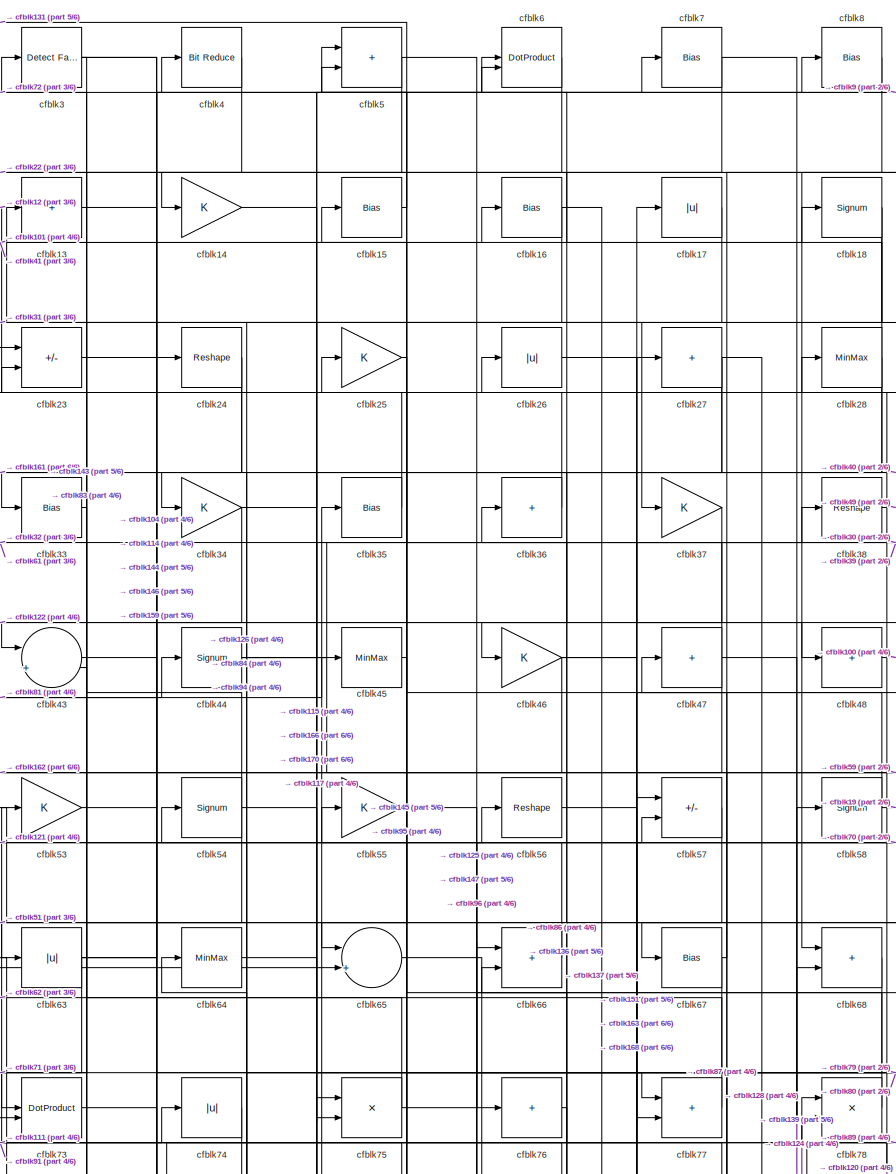
[diagram: root canvas - part 1/6, top center region]
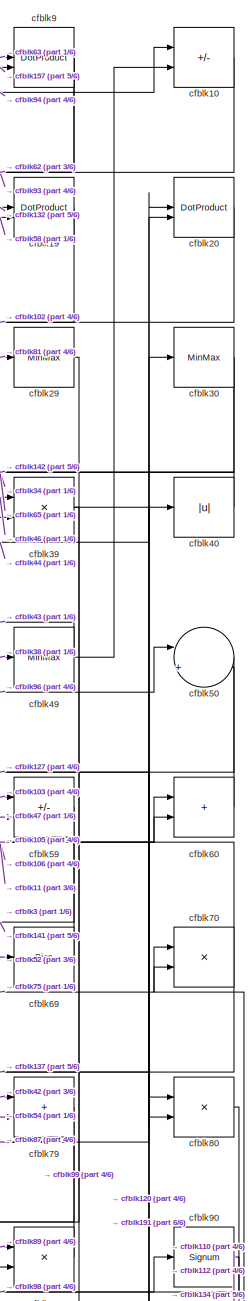
[diagram: root canvas - part 2/6, top right region]
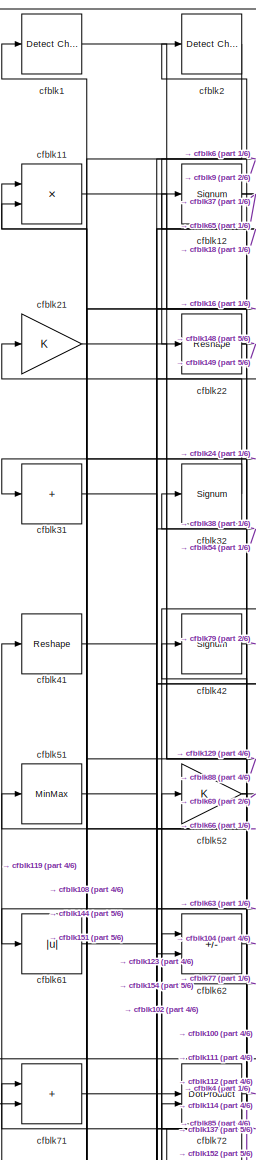
[diagram: root canvas - part 3/6, top left region]
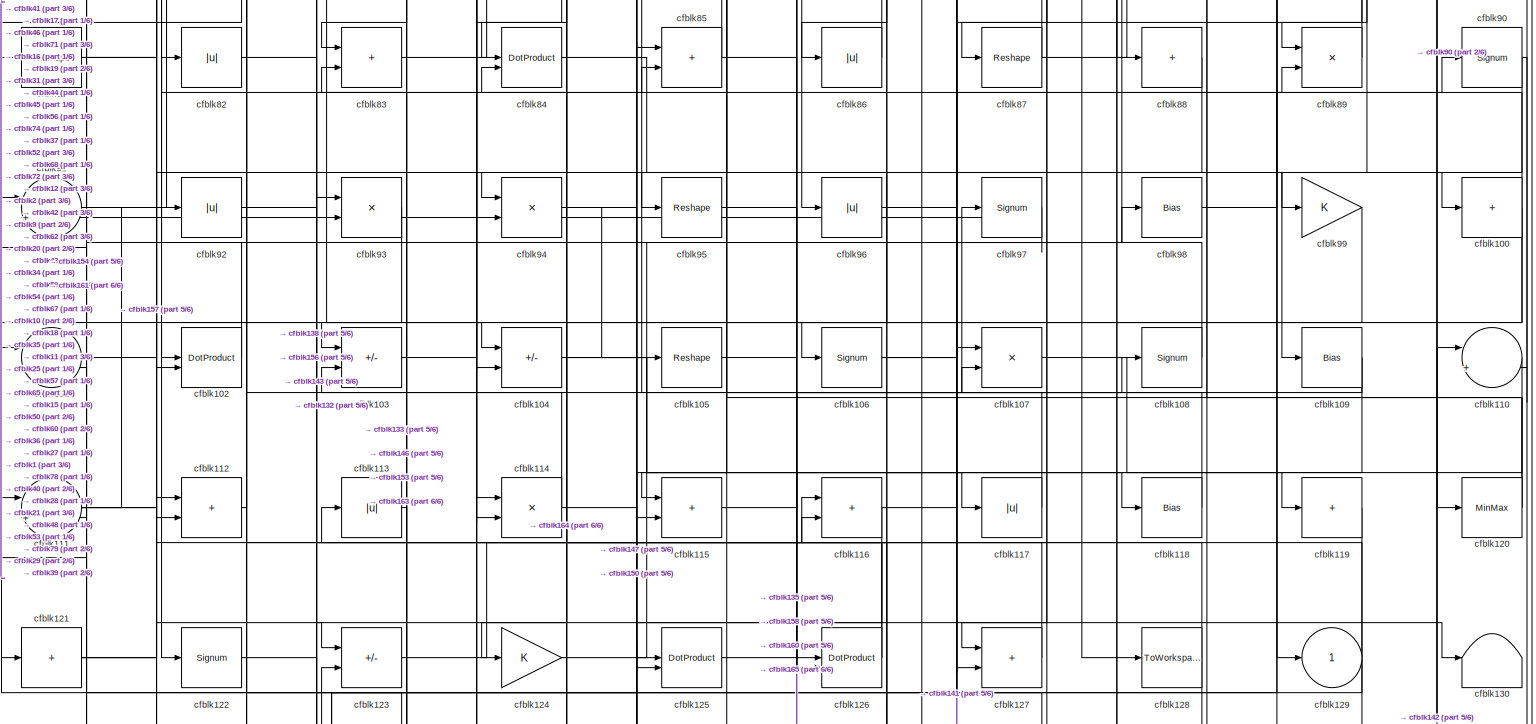
[diagram: root canvas - part 4/6, full width, middle band]
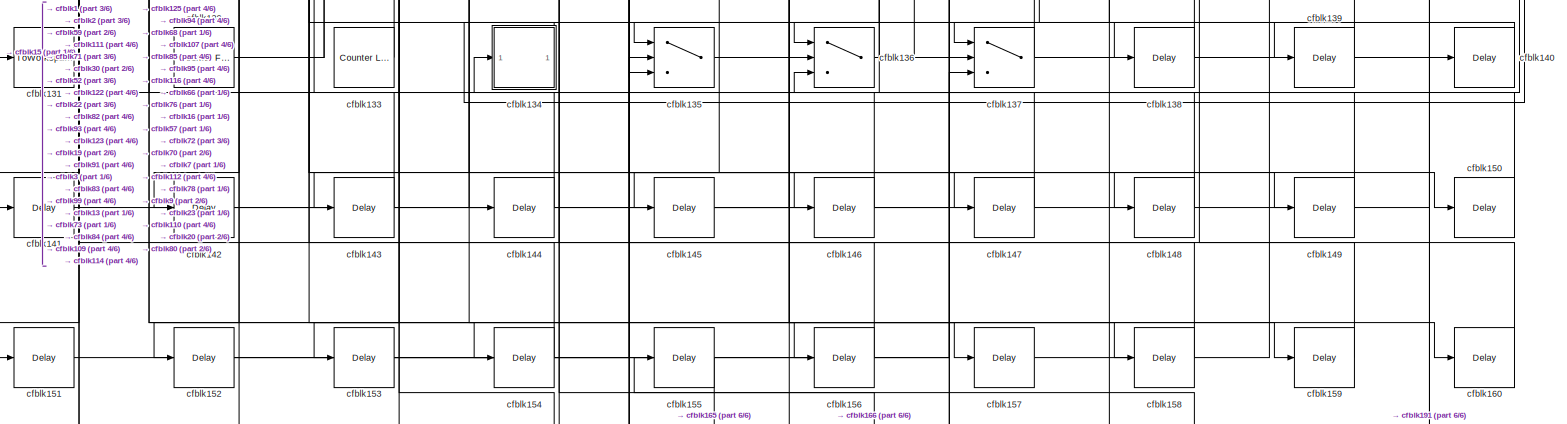
[diagram: root canvas - part 5/6, full width, bottom band]
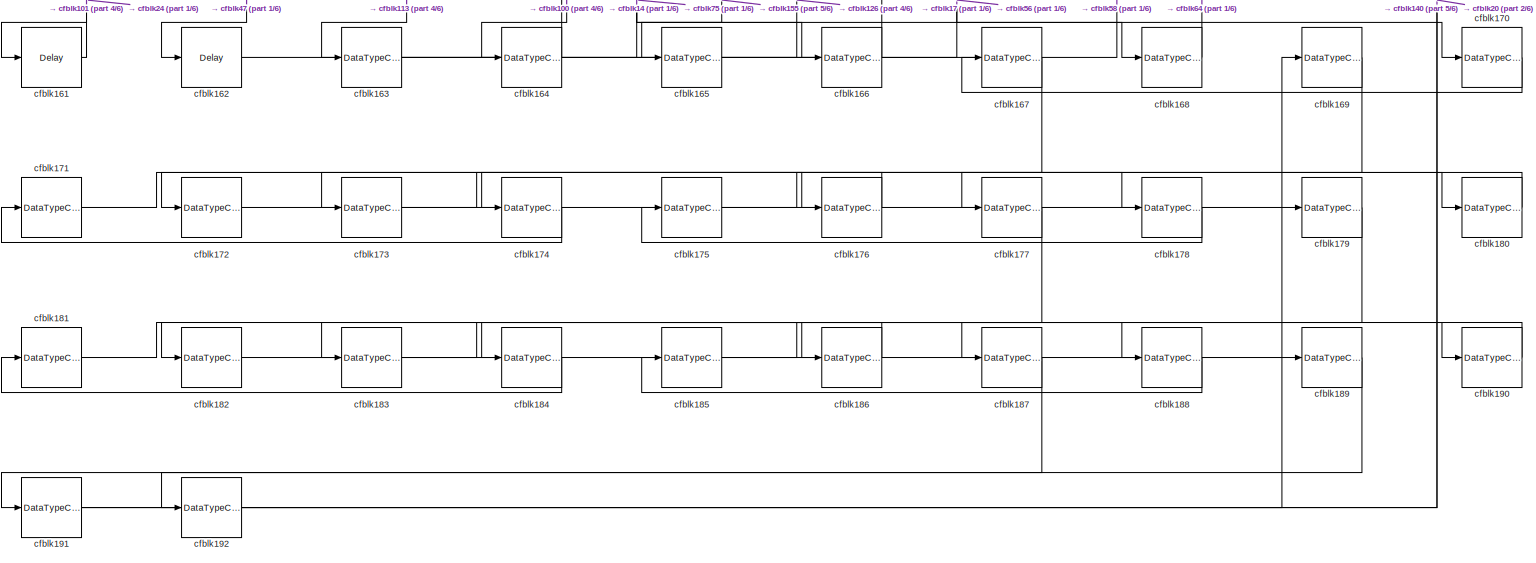
[diagram: root canvas - part 6/6, full width, bottom band]
MODEL slx_b6fbd761c72e
KIND model
CONFIG AbsTol = auto
CONFIG EnableMultiTasking = off
CONFIG FixedStep = auto
CONFIG MaxStep = auto
CONFIG MinStep = auto
CONFIG RelTol = 1e-3
CONFIG SampleTimeConstraint = Unconstrained
CONFIG SolverName = VariableStepAuto
CONFIG StartTime = 0.0
CONFIG StopTime = 10.0
BLOCK [Reference] cfblk1  REF=simulink/Logic and Bit
Operations/Detect
Change
  LibrarySourceBlock = hdlsllib/Logic and Bit\nOperations/Detect\nChange
  SourceBlock = simulink/Logic and Bit\nOperations/Detect\nChange
  SourceType = Detect Change
BLOCK [Sum] cfblk10
  IconShape = rectangular
  Inputs = +-
BLOCK [Sum] cfblk100
  IconShape = rectangular
  Inputs = +
BLOCK [Sum] cfblk101
  Inputs = |++
BLOCK [DotProduct] cfblk102
  OutDataTypeStr = Inherit: Inherit via internal rule
BLOCK [Sum] cfblk103
  IconShape = rectangular
  Inputs = +-
BLOCK [Sum] cfblk104
  IconShape = rectangular
  Inputs = +-
BLOCK [Reshape] cfblk105
BLOCK [Signum] cfblk106
BLOCK [Product] cfblk107
  Inputs = */
  RndMeth = Zero
  SaturateOnIntegerOverflow = on
BLOCK [Signum] cfblk108
BLOCK [Bias] cfblk109
  Bias = 0.0
  SaturateOnIntegerOverflow = off
BLOCK [Product] cfblk11
  Inputs = */
  RndMeth = Zero
  SaturateOnIntegerOverflow = on
BLOCK [Sum] cfblk110
  Inputs = |++
BLOCK [Sum] cfblk111
  Inputs = |++
BLOCK [Sum] cfblk112
  IconShape = rectangular
BLOCK [Abs] cfblk113
  SaturateOnIntegerOverflow = off
BLOCK [Product] cfblk114
  Inputs = */
  RndMeth = Zero
  SaturateOnIntegerOverflow = on
BLOCK [Sum] cfblk115
  IconShape = rectangular
BLOCK [Sum] cfblk116
  IconShape = rectangular
BLOCK [Abs] cfblk117
  SaturateOnIntegerOverflow = off
BLOCK [Bias] cfblk118
  Bias = 0.0
  SaturateOnIntegerOverflow = off
BLOCK [Sum] cfblk119
  IconShape = rectangular
  Inputs = +
BLOCK [Signum] cfblk12
BLOCK [MinMax] cfblk120
BLOCK [Sum] cfblk121
  IconShape = rectangular
  Inputs = +
BLOCK [Signum] cfblk122
BLOCK [Sum] cfblk123
  IconShape = rectangular
  Inputs = +-
BLOCK [Gain] cfblk124
BLOCK [DotProduct] cfblk125
  OutDataTypeStr = Inherit: Inherit via internal rule
BLOCK [DotProduct] cfblk126
  OutDataTypeStr = Inherit: Inherit via internal rule
BLOCK [Sum] cfblk127
  IconShape = rectangular
BLOCK [ToWorkspace] cfblk128
  MaxDataPoints = inf
  SampleTime = -1
  SaveFormat = Timeseries
  VariableName = simout
BLOCK [Outport] cfblk129
  VectorParamsAs1DForOutWhenUnconnected = off
BLOCK [Sum] cfblk13
  IconShape = rectangular
  Inputs = +
BLOCK [Terminator] cfblk130
BLOCK [ToWorkspace] cfblk131
  MaxDataPoints = inf
  SampleTime = -1
  SaveFormat = Timeseries
  VariableName = simout
BLOCK [Reference] cfblk132  REF=hdlsllib/Sources/Counter
Free-Running
  SourceBlock = hdlsllib/Sources/Counter\nFree-Running
  SourceType = Counter Free-Running
BLOCK [Reference] cfblk133  REF=hdlsllib/Sources/Counter
Limited
  SourceBlock = hdlsllib/Sources/Counter\nLimited
  SourceType = Counter Limited
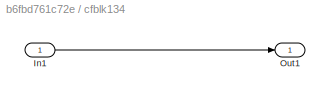
BLOCK [SubSystem] cfblk134
  LibrarySourceBlock = hdlsllib/Ports &\nSubsystems/Subsystem
BLOCK [Inport] cfblk134/In1
BLOCK [Outport] cfblk134/Out1
BLOCK [Switch] cfblk135
  InputSameDT = off
  SaturateOnIntegerOverflow = off
BLOCK [Switch] cfblk136
  InputSameDT = off
  SaturateOnIntegerOverflow = off
BLOCK [Switch] cfblk137
  InputSameDT = off
  SaturateOnIntegerOverflow = off
BLOCK [Delay] cfblk138
  InputPortMap = u0
  SampleTime = 1
BLOCK [Delay] cfblk139
  InputPortMap = u0
  SampleTime = 1
BLOCK [Gain] cfblk14
BLOCK [Delay] cfblk140
  InputPortMap = u0
  SampleTime = 1
BLOCK [Delay] cfblk141
  InputPortMap = u0
  SampleTime = 1
BLOCK [Delay] cfblk142
  InputPortMap = u0
  SampleTime = 1
BLOCK [Delay] cfblk143
  InputPortMap = u0
  SampleTime = 1
BLOCK [Delay] cfblk144
  InputPortMap = u0
  SampleTime = 1
BLOCK [Delay] cfblk145
  InputPortMap = u0
  SampleTime = 1
BLOCK [Delay] cfblk146
  InputPortMap = u0
  SampleTime = 1
BLOCK [Delay] cfblk147
  InputPortMap = u0
  SampleTime = 1
BLOCK [Delay] cfblk148
  InputPortMap = u0
  SampleTime = 1
BLOCK [Delay] cfblk149
  InputPortMap = u0
  SampleTime = 1
BLOCK [Bias] cfblk15
  Bias = 0.0
  SaturateOnIntegerOverflow = off
BLOCK [Delay] cfblk150
  InputPortMap = u0
  SampleTime = 1
BLOCK [Delay] cfblk151
  InputPortMap = u0
  SampleTime = 1
BLOCK [Delay] cfblk152
  InputPortMap = u0
  SampleTime = 1
BLOCK [Delay] cfblk153
  InputPortMap = u0
  SampleTime = 1
BLOCK [Delay] cfblk154
  InputPortMap = u0
  SampleTime = 1
BLOCK [Delay] cfblk155
  InputPortMap = u0
  SampleTime = 1
BLOCK [Delay] cfblk156
  InputPortMap = u0
  SampleTime = 1
BLOCK [Delay] cfblk157
  InputPortMap = u0
  SampleTime = 1
BLOCK [Delay] cfblk158
  InputPortMap = u0
  SampleTime = 1
BLOCK [Delay] cfblk159
  InputPortMap = u0
  SampleTime = 1
BLOCK [Bias] cfblk16
  Bias = 0.0
  SaturateOnIntegerOverflow = off
BLOCK [Delay] cfblk160
  InputPortMap = u0
  SampleTime = 1
BLOCK [Delay] cfblk161
  InputPortMap = u0
  SampleTime = 1
BLOCK [Delay] cfblk162
  InputPortMap = u0
  SampleTime = 1
BLOCK [DataTypeConversion] cfblk163
  RndMeth = Floor
  SaturateOnIntegerOverflow = off
BLOCK [DataTypeConversion] cfblk164
  OutDataTypeStr = uint8
  RndMeth = Floor
  SaturateOnIntegerOverflow = off
BLOCK [DataTypeConversion] cfblk165
  OutDataTypeStr = uint8
  RndMeth = Floor
  SaturateOnIntegerOverflow = off
BLOCK [DataTypeConversion] cfblk166
  OutDataTypeStr = uint8
  RndMeth = Floor
  SaturateOnIntegerOverflow = off
BLOCK [DataTypeConversion] cfblk167
  RndMeth = Floor
  SaturateOnIntegerOverflow = off
BLOCK [DataTypeConversion] cfblk168
  OutDataTypeStr = uint8
  RndMeth = Floor
  SaturateOnIntegerOverflow = off
BLOCK [DataTypeConversion] cfblk169
  RndMeth = Floor
  SaturateOnIntegerOverflow = off
BLOCK [Abs] cfblk17
  SaturateOnIntegerOverflow = off
BLOCK [DataTypeConversion] cfblk170
  OutDataTypeStr = uint8
  RndMeth = Floor
  SaturateOnIntegerOverflow = off
BLOCK [DataTypeConversion] cfblk171
  RndMeth = Floor
  SaturateOnIntegerOverflow = off
BLOCK [DataTypeConversion] cfblk172
  OutDataTypeStr = uint8
  RndMeth = Floor
  SaturateOnIntegerOverflow = off
BLOCK [DataTypeConversion] cfblk173
  RndMeth = Floor
  SaturateOnIntegerOverflow = off
BLOCK [DataTypeConversion] cfblk174
  OutDataTypeStr = uint8
  RndMeth = Floor
  SaturateOnIntegerOverflow = off
BLOCK [DataTypeConversion] cfblk175
  RndMeth = Floor
  SaturateOnIntegerOverflow = off
BLOCK [DataTypeConversion] cfblk176
  OutDataTypeStr = uint8
  RndMeth = Floor
  SaturateOnIntegerOverflow = off
BLOCK [DataTypeConversion] cfblk177
  RndMeth = Floor
  SaturateOnIntegerOverflow = off
BLOCK [DataTypeConversion] cfblk178
  OutDataTypeStr = uint8
  RndMeth = Floor
  SaturateOnIntegerOverflow = off
BLOCK [DataTypeConversion] cfblk179
  RndMeth = Floor
  SaturateOnIntegerOverflow = off
BLOCK [Signum] cfblk18
BLOCK [DataTypeConversion] cfblk180
  OutDataTypeStr = uint8
  RndMeth = Floor
  SaturateOnIntegerOverflow = off
BLOCK [DataTypeConversion] cfblk181
  RndMeth = Floor
  SaturateOnIntegerOverflow = off
BLOCK [DataTypeConversion] cfblk182
  OutDataTypeStr = uint8
  RndMeth = Floor
  SaturateOnIntegerOverflow = off
BLOCK [DataTypeConversion] cfblk183
  RndMeth = Floor
  SaturateOnIntegerOverflow = off
BLOCK [DataTypeConversion] cfblk184
  OutDataTypeStr = uint8
  RndMeth = Floor
  SaturateOnIntegerOverflow = off
BLOCK [DataTypeConversion] cfblk185
  RndMeth = Floor
  SaturateOnIntegerOverflow = off
BLOCK [DataTypeConversion] cfblk186
  OutDataTypeStr = uint8
  RndMeth = Floor
  SaturateOnIntegerOverflow = off
BLOCK [DataTypeConversion] cfblk187
  RndMeth = Floor
  SaturateOnIntegerOverflow = off
BLOCK [DataTypeConversion] cfblk188
  OutDataTypeStr = uint8
  RndMeth = Floor
  SaturateOnIntegerOverflow = off
BLOCK [DataTypeConversion] cfblk189
  RndMeth = Floor
  SaturateOnIntegerOverflow = off
BLOCK [DotProduct] cfblk19
  OutDataTypeStr = Inherit: Inherit via internal rule
BLOCK [DataTypeConversion] cfblk190
  OutDataTypeStr = uint8
  RndMeth = Floor
  SaturateOnIntegerOverflow = off
BLOCK [DataTypeConversion] cfblk191
  RndMeth = Floor
  SaturateOnIntegerOverflow = off
BLOCK [DataTypeConversion] cfblk192
  OutDataTypeStr = uint8
  RndMeth = Floor
  SaturateOnIntegerOverflow = off
BLOCK [Reference] cfblk2  REF=simulink/Logic and Bit
Operations/Detect
Change
  LibrarySourceBlock = hdlsllib/Logic and Bit\nOperations/Detect\nChange
  SourceBlock = simulink/Logic and Bit\nOperations/Detect\nChange
  SourceType = Detect Change
BLOCK [DotProduct] cfblk20
  OutDataTypeStr = Inherit: Inherit via internal rule
BLOCK [Gain] cfblk21
BLOCK [Reshape] cfblk22
BLOCK [Sum] cfblk23
  IconShape = rectangular
  Inputs = +-
BLOCK [Reshape] cfblk24
BLOCK [Gain] cfblk25
BLOCK [Abs] cfblk26
  SaturateOnIntegerOverflow = off
BLOCK [Sum] cfblk27
  IconShape = rectangular
  Inputs = +
BLOCK [MinMax] cfblk28
BLOCK [MinMax] cfblk29
BLOCK [Reference] cfblk3  REF=hdlsllib/Logic and Bit
Operations/Detect Fall
Negative
  SourceBlock = hdlsllib/Logic and Bit\nOperations/Detect Fall\nNegative
  SourceType = Detect Fall Negative
BLOCK [MinMax] cfblk30
BLOCK [Sum] cfblk31
  IconShape = rectangular
  Inputs = +
BLOCK [Signum] cfblk32
BLOCK [Bias] cfblk33
  Bias = 0.0
  SaturateOnIntegerOverflow = off
BLOCK [Gain] cfblk34
BLOCK [Bias] cfblk35
  Bias = 0.0
  SaturateOnIntegerOverflow = off
BLOCK [Sum] cfblk36
  IconShape = rectangular
  Inputs = +
BLOCK [Gain] cfblk37
BLOCK [Reshape] cfblk38
BLOCK [Product] cfblk39
  Inputs = */
  RndMeth = Zero
  SaturateOnIntegerOverflow = on
BLOCK [Reference] cfblk4  REF=hdlsllib/Logic and Bit
Operations/Bit Reduce
  SourceBlock = hdlsllib/Logic and Bit\nOperations/Bit Reduce
  SourceType = Bit Reduce
BLOCK [Abs] cfblk40
  SaturateOnIntegerOverflow = off
BLOCK [Reshape] cfblk41
BLOCK [Signum] cfblk42
BLOCK [Sum] cfblk43
  Inputs = |++
BLOCK [Signum] cfblk44
BLOCK [MinMax] cfblk45
BLOCK [Gain] cfblk46
BLOCK [Sum] cfblk47
  IconShape = rectangular
  Inputs = +
BLOCK [Sum] cfblk48
  IconShape = rectangular
  Inputs = +
BLOCK [MinMax] cfblk49
BLOCK [Sum] cfblk5
  IconShape = rectangular
BLOCK [Sum] cfblk50
  Inputs = |++
BLOCK [MinMax] cfblk51
BLOCK [Gain] cfblk52
BLOCK [Gain] cfblk53
BLOCK [Signum] cfblk54
BLOCK [Gain] cfblk55
BLOCK [Reshape] cfblk56
BLOCK [Sum] cfblk57
  IconShape = rectangular
  Inputs = +-
BLOCK [Signum] cfblk58
BLOCK [Sum] cfblk59
  IconShape = rectangular
  Inputs = +-
BLOCK [DotProduct] cfblk6
  OutDataTypeStr = Inherit: Inherit via internal rule
BLOCK [Sum] cfblk60
  IconShape = rectangular
BLOCK [Abs] cfblk61
  SaturateOnIntegerOverflow = off
BLOCK [Sum] cfblk62
  IconShape = rectangular
  Inputs = +-
BLOCK [Abs] cfblk63
  SaturateOnIntegerOverflow = off
BLOCK [MinMax] cfblk64
BLOCK [Sum] cfblk65
  Inputs = |++
BLOCK [Sum] cfblk66
  IconShape = rectangular
BLOCK [Bias] cfblk67
  Bias = 0.0
  SaturateOnIntegerOverflow = off
BLOCK [Sum] cfblk68
  IconShape = rectangular
BLOCK [Bias] cfblk69
  Bias = 0.0
  SaturateOnIntegerOverflow = off
BLOCK [Bias] cfblk7
  Bias = 0.0
  SaturateOnIntegerOverflow = off
BLOCK [Product] cfblk70
  Inputs = */
  RndMeth = Zero
  SaturateOnIntegerOverflow = on
BLOCK [Sum] cfblk71
  IconShape = rectangular
BLOCK [DotProduct] cfblk72
  OutDataTypeStr = Inherit: Inherit via internal rule
BLOCK [DotProduct] cfblk73
  OutDataTypeStr = Inherit: Inherit via internal rule
BLOCK [Abs] cfblk74
  SaturateOnIntegerOverflow = off
BLOCK [Product] cfblk75
  Inputs = */
  RndMeth = Zero
  SaturateOnIntegerOverflow = on
BLOCK [Sum] cfblk76
  IconShape = rectangular
  Inputs = +
BLOCK [Sum] cfblk77
  IconShape = rectangular
BLOCK [Product] cfblk78
  Inputs = */
  RndMeth = Zero
  SaturateOnIntegerOverflow = on
BLOCK [Sum] cfblk79
  IconShape = rectangular
BLOCK [Bias] cfblk8
  Bias = 0.0
  SaturateOnIntegerOverflow = off
BLOCK [Product] cfblk80
  Inputs = */
  RndMeth = Zero
  SaturateOnIntegerOverflow = on
BLOCK [Reshape] cfblk81
BLOCK [Abs] cfblk82
  SaturateOnIntegerOverflow = off
BLOCK [Sum] cfblk83
  IconShape = rectangular
BLOCK [DotProduct] cfblk84
  OutDataTypeStr = Inherit: Inherit via internal rule
BLOCK [Sum] cfblk85
  IconShape = rectangular
BLOCK [Abs] cfblk86
  SaturateOnIntegerOverflow = off
BLOCK [Reshape] cfblk87
BLOCK [Sum] cfblk88
  IconShape = rectangular
  Inputs = +
BLOCK [Product] cfblk89
  Inputs = */
  RndMeth = Zero
  SaturateOnIntegerOverflow = on
BLOCK [DotProduct] cfblk9
  OutDataTypeStr = Inherit: Inherit via internal rule
BLOCK [Signum] cfblk90
BLOCK [Sum] cfblk91
  Inputs = |++
BLOCK [Abs] cfblk92
  SaturateOnIntegerOverflow = off
BLOCK [Product] cfblk93
  Inputs = */
  RndMeth = Zero
  SaturateOnIntegerOverflow = on
BLOCK [Product] cfblk94
  Inputs = */
  RndMeth = Zero
  SaturateOnIntegerOverflow = on
BLOCK [Reshape] cfblk95
BLOCK [Abs] cfblk96
  SaturateOnIntegerOverflow = off
BLOCK [Signum] cfblk97
BLOCK [Bias] cfblk98
  Bias = 0.0
  SaturateOnIntegerOverflow = off
BLOCK [Gain] cfblk99
NET cfblk100:1 -> cfblk102:1, cfblk12:1, cfblk164:1
LINE cfblk101:1 -> cfblk16:1
LINE cfblk102:1 -> cfblk52:1
LINE cfblk103:1 -> cfblk59:1
NET cfblk104:1 -> cfblk117:1, cfblk118:1
LINE cfblk105:1 -> cfblk60:1
NET cfblk106:1 -> cfblk60:2, cfblk98:1
LINE cfblk107:1 -> cfblk119:1
LINE cfblk108:1 -> cfblk71:1
NET cfblk109:1 -> cfblk103:2, cfblk135:3
LINE cfblk10:1 -> cfblk87:1
LINE cfblk110:1 -> cfblk126:2
NET cfblk111:1 -> cfblk157:1, cfblk74:1, cfblk92:1
LINE cfblk112:1 -> cfblk42:1
LINE cfblk113:1 -> cfblk163:1
NET cfblk114:1 -> cfblk150:1, cfblk2:1
LINE cfblk115:1 -> cfblk108:1
NET cfblk116:1 -> cfblk125:2, cfblk89:2
LINE cfblk117:1 -> cfblk35:1
LINE cfblk118:1 -> cfblk97:1
LINE cfblk119:1 -> cfblk41:1
LINE cfblk11:1 -> cfblk114:1
NET cfblk120:1 -> cfblk25:1, cfblk28:1
NET cfblk121:1 -> cfblk44:1, cfblk56:1
LINE cfblk122:1 -> cfblk156:1
LINE cfblk123:1 -> cfblk116:1
LINE cfblk124:1 -> cfblk78:1
LINE cfblk125:1 -> cfblk57:2
NET cfblk126:1 -> cfblk43:2, cfblk54:1
LINE cfblk127:1 -> cfblk82:1
NET cfblk12:1 -> cfblk37:1, cfblk65:2
NET cfblk132:1 -> cfblk19:1, cfblk85:1
LINE cfblk133:1 -> cfblk91:1
LINE cfblk134/In1:1 -> cfblk134/Out1:1
LINE cfblk134:1 -> cfblk70:1
LINE cfblk135:1 -> cfblk107:2
LINE cfblk136:1 -> cfblk66:2
NET cfblk137:1 -> cfblk20:1, cfblk72:2
LINE cfblk138:1 -> cfblk112:1
LINE cfblk139:1 -> cfblk23:1
LINE cfblk13:1 -> cfblk144:1
LINE cfblk140:1 -> cfblk135:1
LINE cfblk141:1 -> cfblk107:1
LINE cfblk142:1 -> cfblk110:1
LINE cfblk143:1 -> cfblk123:2
LINE cfblk144:1 -> cfblk1:1
LINE cfblk145:1 -> cfblk136:2
LINE cfblk146:1 -> cfblk83:2
LINE cfblk147:1 -> cfblk66:1
LINE cfblk148:1 -> cfblk72:1
LINE cfblk149:1 -> cfblk136:3
LINE cfblk14:1 -> cfblk166:1
LINE cfblk150:1 -> cfblk116:2
LINE cfblk151:1 -> cfblk57:1
LINE cfblk152:1 -> cfblk137:3
LINE cfblk153:1 -> cfblk125:1
LINE cfblk154:1 -> cfblk111:1
LINE cfblk155:1 -> cfblk165:1
LINE cfblk156:1 -> cfblk135:2
LINE cfblk157:1 -> cfblk9:2
LINE cfblk158:1 -> cfblk84:2
LINE cfblk159:1 -> cfblk78:2
LINE cfblk15:1 -> cfblk131:1
LINE cfblk160:1 -> cfblk93:1
LINE cfblk161:1 -> cfblk101:2
LINE cfblk162:1 -> cfblk75:1
NET cfblk163:1 -> cfblk17:1, cfblk58:1
LINE cfblk164:1 -> cfblk113:1
LINE cfblk165:1 -> cfblk126:1
LINE cfblk166:1 -> cfblk155:1
LINE cfblk167:1 -> cfblk172:1
LINE cfblk168:1 -> cfblk64:1
LINE cfblk169:1 -> cfblk174:1
NET cfblk16:1 -> cfblk137:2, cfblk31:1
LINE cfblk170:1 -> cfblk167:1
LINE cfblk171:1 -> cfblk176:1
LINE cfblk172:1 -> cfblk169:1
LINE cfblk173:1 -> cfblk178:1
LINE cfblk174:1 -> cfblk171:1
LINE cfblk175:1 -> cfblk180:1
LINE cfblk176:1 -> cfblk173:1
LINE cfblk177:1 -> cfblk182:1
LINE cfblk178:1 -> cfblk175:1
LINE cfblk179:1 -> cfblk184:1
LINE cfblk17:1 -> cfblk81:1
LINE cfblk180:1 -> cfblk177:1
LINE cfblk181:1 -> cfblk186:1
LINE cfblk182:1 -> cfblk179:1
LINE cfblk183:1 -> cfblk188:1
LINE cfblk184:1 -> cfblk181:1
LINE cfblk185:1 -> cfblk190:1
LINE cfblk186:1 -> cfblk183:1
LINE cfblk187:1 -> cfblk192:1
LINE cfblk188:1 -> cfblk185:1
LINE cfblk189:1 -> cfblk191:1
NET cfblk18:1 -> cfblk115:2, cfblk124:1
LINE cfblk190:1 -> cfblk187:1
NET cfblk191:1 -> cfblk140:1, cfblk20:2
LINE cfblk192:1 -> cfblk189:1
LINE cfblk19:1 -> cfblk102:2
LINE cfblk1:1 -> cfblk88:1
LINE cfblk20:1 -> cfblk103:1
LINE cfblk21:1 -> cfblk129:1
NET cfblk22:1 -> cfblk148:1, cfblk149:1
LINE cfblk23:1 -> cfblk7:1
NET cfblk24:1 -> cfblk161:1, cfblk61:1
LINE cfblk25:1 -> cfblk95:1
LINE cfblk26:1 -> cfblk48:1
NET cfblk27:1 -> cfblk128:1, cfblk75:2, cfblk86:1
NET cfblk28:1 -> cfblk6:2, cfblk73:2, cfblk94:1
LINE cfblk29:1 -> cfblk99:1
LINE cfblk2:1 -> cfblk151:1
NET cfblk30:1 -> cfblk142:1, cfblk65:1
LINE cfblk31:1 -> cfblk123:1
LINE cfblk32:1 -> cfblk21:1
LINE cfblk33:1 -> cfblk73:1
NET cfblk34:1 -> cfblk114:2, cfblk6:1
LINE cfblk35:1 -> cfblk13:1
LINE cfblk36:1 -> cfblk26:1
LINE cfblk37:1 -> cfblk122:1
LINE cfblk38:1 -> cfblk49:1
NET cfblk39:1 -> cfblk120:1, cfblk89:1
NET cfblk3:1 -> cfblk143:1, cfblk146:1, cfblk77:2
LINE cfblk40:1 -> cfblk34:1
LINE cfblk41:1 -> cfblk18:1
LINE cfblk42:1 -> cfblk79:1
LINE cfblk43:1 -> cfblk104:2
NET cfblk44:1 -> cfblk30:1, cfblk39:2, cfblk80:1
LINE cfblk45:1 -> cfblk115:1
NET cfblk46:1 -> cfblk101:1, cfblk39:1, cfblk80:2
NET cfblk47:1 -> cfblk162:1, cfblk59:2, cfblk5:1
LINE cfblk48:1 -> cfblk100:1
NET cfblk49:1 -> cfblk10:2, cfblk43:1
LINE cfblk4:1 -> cfblk33:1
LINE cfblk50:1 -> cfblk127:1
LINE cfblk51:1 -> cfblk63:1
NET cfblk52:1 -> cfblk152:1, cfblk69:1
LINE cfblk53:1 -> cfblk24:1
NET cfblk54:1 -> cfblk32:1, cfblk79:2, cfblk83:1
LINE cfblk55:1 -> cfblk76:1
LINE cfblk56:1 -> cfblk168:1
LINE cfblk57:1 -> cfblk67:1
NET cfblk58:1 -> cfblk19:2, cfblk5:2
LINE cfblk59:1 -> cfblk141:1
NET cfblk5:1 -> cfblk14:1, cfblk77:1
LINE cfblk60:1 -> cfblk50:2
LINE cfblk61:1 -> cfblk38:1
LINE cfblk62:1 -> cfblk104:1
NET cfblk63:1 -> cfblk71:2, cfblk8:1, cfblk9:1
LINE cfblk64:1 -> cfblk170:1
LINE cfblk65:1 -> cfblk96:1
LINE cfblk66:1 -> cfblk51:1
NET cfblk67:1 -> cfblk47:1, cfblk84:1
LINE cfblk68:1 -> cfblk145:1
LINE cfblk69:1 -> cfblk11:2
LINE cfblk6:1 -> cfblk22:1
NET cfblk70:1 -> cfblk137:1, cfblk3:1
LINE cfblk71:1 -> cfblk154:1
NET cfblk72:1 -> cfblk111:2, cfblk4:1
LINE cfblk73:1 -> cfblk159:1
LINE cfblk74:1 -> cfblk94:2
NET cfblk75:1 -> cfblk23:2, cfblk70:2
LINE cfblk76:1 -> cfblk136:1
LINE cfblk77:1 -> cfblk62:1
LINE cfblk78:1 -> cfblk55:1
LINE cfblk79:1 -> cfblk127:2
NET cfblk7:1 -> cfblk139:1, cfblk46:1
LINE cfblk80:1 -> cfblk134:1
NET cfblk81:1 -> cfblk29:1, cfblk45:1
LINE cfblk82:1 -> cfblk138:1
LINE cfblk83:1 -> cfblk27:1
LINE cfblk84:1 -> cfblk109:1
NET cfblk85:1 -> cfblk11:1, cfblk158:1
LINE cfblk86:1 -> cfblk15:1
NET cfblk87:1 -> cfblk36:1, cfblk40:1
LINE cfblk88:1 -> cfblk106:1
LINE cfblk89:1 -> cfblk53:1
LINE cfblk8:1 -> cfblk68:1
NET cfblk90:1 -> cfblk110:2, cfblk112:2
LINE cfblk91:1 -> cfblk68:2
NET cfblk92:1 -> cfblk130:1, cfblk85:2
LINE cfblk93:1 -> cfblk121:1
NET cfblk94:1 -> cfblk105:1, cfblk10:1, cfblk147:1
LINE cfblk95:1 -> cfblk160:1
LINE cfblk96:1 -> cfblk50:1
LINE cfblk97:1 -> cfblk91:2
LINE cfblk98:1 -> cfblk90:1
LINE cfblk99:1 -> cfblk153:1
NET cfblk9:1 -> cfblk62:2, cfblk93:2
note: NET lines group one-source signal fan-out (src -> all destinations, sorted); 1:1 wires keep LINE
